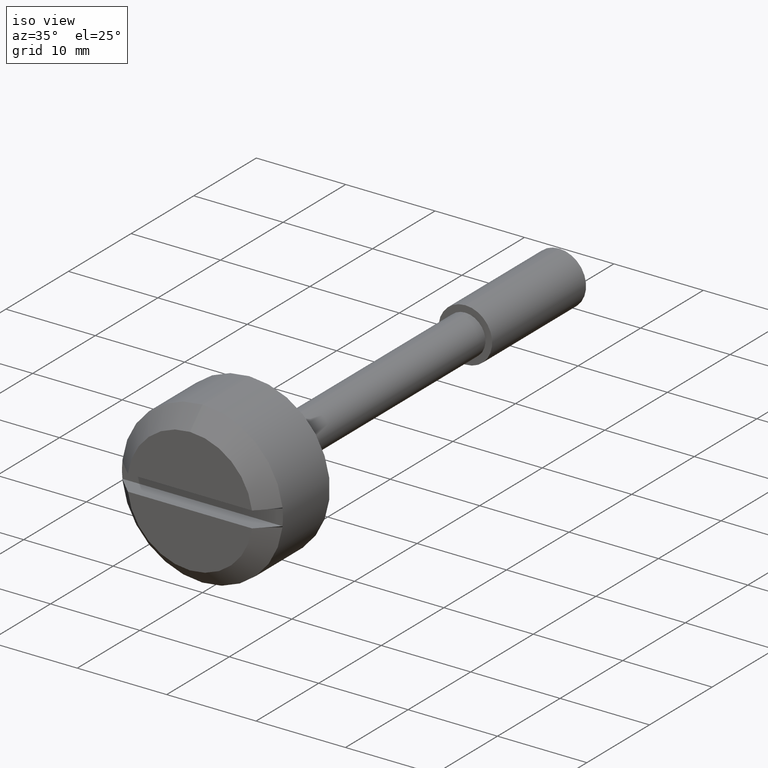
[diagram: clean part render]
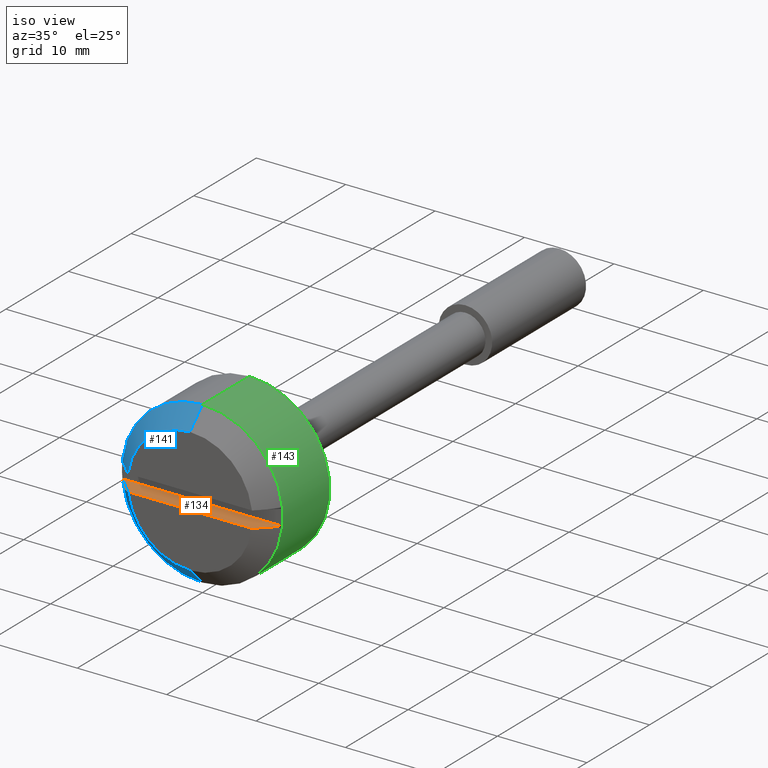
[diagram: same view with three faces highlighted in distinct colors, each labeled with its STEP entity id]
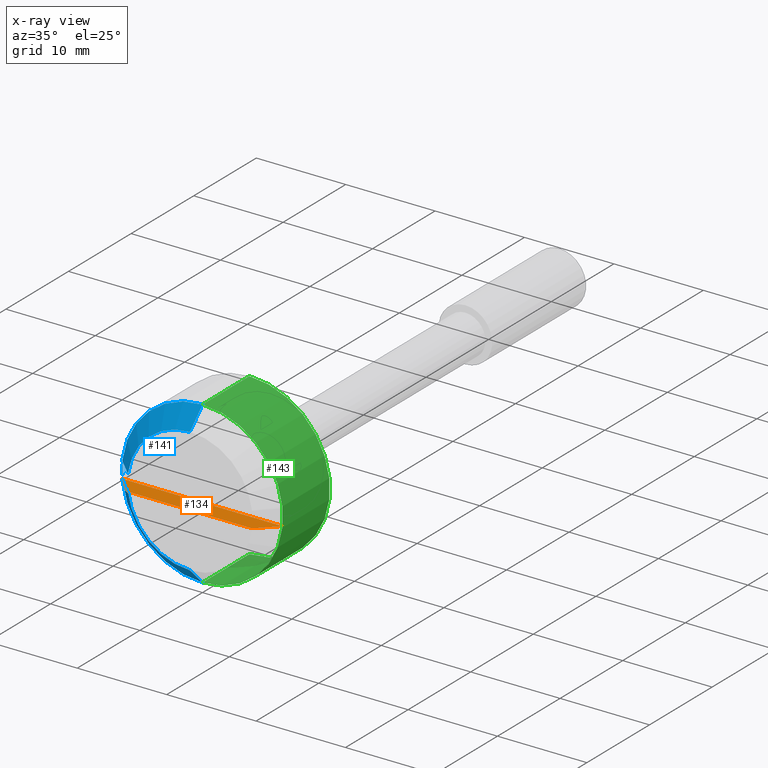
[diagram: x-ray of the same camera — body ghosted, the three highlighted faces saturated]
A machine part, iso view with three faces highlighted in distinct colors.
The next image is the same camera in x-ray (body ghosted, the three faces saturated) — at least one of them is partly hidden behind the body in this view.
Their STEP definitions:

[orange] entity #134 — the highlighted planar face has unit normal (0, 0, 1).
#134=ADVANCED_FACE('',(#377),#376,.T.);
#376=PLANE('',#694);
#377=FACE_OUTER_BOUND('',#695,.T.);
#691=CARTESIAN_POINT('',(-1.21998900000E+01,-1.07457437162E+01,-9.00000000000E-01));
#692=DIRECTION('',(0.00000000000E+00,0.00000000000E+00,1.00000000000E+00));
#693=DIRECTION('',(1.00000000000E+00,0.00000000000E+00,0.00000000000E+00));
#694=AXIS2_PLACEMENT_3D('',#691,#692,#693);
#695=EDGE_LOOP('',(#946,#947,#948,#949));
#946=ORIENTED_EDGE('',*,*,#1091,.F.);
#947=ORIENTED_EDGE('',*,*,#1090,.F.);
#948=ORIENTED_EDGE('',*,*,#1092,.F.);
#949=ORIENTED_EDGE('',*,*,#1093,.T.);
#1090=EDGE_CURVE('',#1525,#1518,#1532,.T.);
#1091=EDGE_CURVE('',#1518,#1538,#1539,.T.);
#1092=EDGE_CURVE('',#1545,#1525,#1546,.T.);
#1093=EDGE_CURVE('',#1545,#1538,#1552,.T.);
#1518=VERTEX_POINT('',#2029);
#1525=VERTEX_POINT('',#2034);
#1532=LINE('',#2039,#2040);
#1538=VERTEX_POINT('',#2042);
#1539=(BOUNDED_CURVE() B_SPLINE_CURVE(3,(#2043,#2044,#2045,#2046),.UNSPECIFIED.,.F.,.F.) B_SPLINE_CURVE_WITH_KNOTS((4,4),(1.52743872715E-02,1.81118693173E-02),.UNSPECIFIED.) CURVE() GEOMETRIC_REPRESENTATION_ITEM() RATIONAL_B_SPLINE_CURVE((1.00000000000E+00,1.00000000000E+00,1.00000000000E+00,1.00000000000E+00)) REPRESENTATION_ITEM('') );
#1545=VERTEX_POINT('',#2047);
#1546=(BOUNDED_CURVE() B_SPLINE_CURVE(3,(#2048,#2049,#2050,#2051),.UNSPECIFIED.,.F.,.F.) B_SPLINE_CURVE_WITH_KNOTS((4,4),(3.68298790014E-02,3.96928572527E-02),.UNSPECIFIED.) CURVE() GEOMETRIC_REPRESENTATION_ITEM() RATIONAL_B_SPLINE_CURVE((1.00000000000E+00,1.00000000000E+00,1.00000000000E+00,1.00000000000E+00)) REPRESENTATION_ITEM('') );
#1552=LINE('',#2052,#2053);
#2029=CARTESIAN_POINT('',(-1.00000000000E+01,-8.95478643017E+00,-9.00000000000E-01));
#2034=CARTESIAN_POINT('',(-1.00000000000E+01,8.95478643017E+00,-9.00000000000E-01));
#2039=CARTESIAN_POINT('',(-1.00000000000E+01,8.95478643017E+00,-9.00000000000E-01));
#2040=VECTOR('',#2041,1.79095728603E+01);
#2041=DIRECTION('',(0.00000000000E+00,-1.00000000000E+00,0.00000000000E+00));
#2042=CARTESIAN_POINT('',(-1.19999000000E+01,-6.94190175672E+00,-9.00000000000E-01));
#2043=CARTESIAN_POINT('',(-1.00000000000E+01,-8.95478643017E+00,-9.00000000000E-01));
#2044=CARTESIAN_POINT('',(-1.06671184612E+01,-8.28430707420E+00,-9.00000000000E-01));
#2045=CARTESIAN_POINT('',(-1.13338914218E+01,-7.61348430153E+00,-9.00000000000E-01));
#2046=CARTESIAN_POINT('',(-1.19999000000E+01,-6.94190175672E+00,-9.00000000000E-01));
#2047=CARTESIAN_POINT('',(-1.19999000000E+01,6.94190175672E+00,-9.00000000000E-01));
#2048=CARTESIAN_POINT('',(-1.19999000000E+01,6.94190175672E+00,-9.00000000000E-01));
#2049=CARTESIAN_POINT('',(-1.13338924097E+01,7.61348330534E+00,-9.00000000000E-01));
#2050=CARTESIAN_POINT('',(-1.06671192296E+01,8.28430630192E+00,-9.00000000000E-01));
#2051=CARTESIAN_POINT('',(-1.00000000000E+01,8.95478643017E+00,-9.00000000000E-01));
#2052=CARTESIAN_POINT('',(-1.19999000000E+01,6.94190175672E+00,-9.00000000000E-01));
#2053=VECTOR('',#2054,1.38838035134E+01);
#2054=DIRECTION('',(0.00000000000E+00,-1.00000000000E+00,0.00000000000E+00));

[blue] entity #141 — the highlighted face is a freeform B-spline surface patch.
#141=ADVANCED_FACE('',(#450),#449,.T.);
#449=( BOUNDED_SURFACE() B_SPLINE_SURFACE( 2,1,((#735,#736),(#737,#738),(#739,#740),(#741,#742),(#743,#744)), .UNSPECIFIED.,.F.,.F.,.F.) B_SPLINE_SURFACE_WITH_KNOTS((3,2,3),(2,2),(0.00000000000E+00,5.00000000000E-01,1.00000000000E+00),(0.00000000000E+00,1.00000000000E+00), .UNSPECIFIED. ) GEOMETRIC_REPRESENTATION_ITEM() RATIONAL_B_SPLINE_SURFACE(((1.00000000000E+00,1.00000000000E+00),(7.07106781187E-01,7.07106781187E-01),(1.00000000000E+00,1.00000000000E+00),(7.07106781187E-01,7.07106781187E-01),(1.00000000000E+00,1.00000000000E+00))) REPRESENTATION_ITEM('') SURFACE() );
#450=FACE_OUTER_BOUND('',#745,.T.);
#735=CARTESIAN_POINT('',(-1.89999000000E+01,0.00000000000E+00,0.00000000000E+00));
#736=CARTESIAN_POINT('',(-6.27197793865E+00,1.55872090122E-15,-1.27279220614E+01));
#737=CARTESIAN_POINT('',(-1.89999000000E+01,0.00000000000E+00,0.00000000000E+00));
#738=CARTESIAN_POINT('',(-6.27197793865E+00,1.27279220614E+01,-1.27279220614E+01));
#739=CARTESIAN_POINT('',(-1.89999000000E+01,0.00000000000E+00,0.00000000000E+00));
#740=CARTESIAN_POINT('',(-6.27197793865E+00,1.27279220614E+01,7.79360450612E-16));
#741=CARTESIAN_POINT('',(-1.89999000000E+01,0.00000000000E+00,0.00000000000E+00));
#742=CARTESIAN_POINT('',(-6.27197793865E+00,1.27279220614E+01,1.27279220614E+01));
#743=CARTESIAN_POINT('',(-1.89999000000E+01,0.00000000000E+00,0.00000000000E+00));
#744=CARTESIAN_POINT('',(-6.27197793865E+00,0.00000000000E+00,1.27279220614E+01));
#745=EDGE_LOOP('',(#976,#977,#978,#979,#980,#981,#982,#983));
#976=ORIENTED_EDGE('',*,*,#1102,.F.);
#977=ORIENTED_EDGE('',*,*,#1092,.T.);
#978=ORIENTED_EDGE('',*,*,#1089,.T.);
#979=ORIENTED_EDGE('',*,*,#1084,.T.);
#980=ORIENTED_EDGE('',*,*,#1109,.F.);
#981=ORIENTED_EDGE('',*,*,#1111,.T.);
#982=ORIENTED_EDGE('',*,*,#1113,.T.);
#983=ORIENTED_EDGE('',*,*,#1112,.F.);
#1084=EDGE_CURVE('',#1490,#1491,#1492,.T.);
#1089=EDGE_CURVE('',#1525,#1490,#1526,.T.);
#1092=EDGE_CURVE('',#1545,#1525,#1546,.T.);
#1102=EDGE_CURVE('',#1545,#1614,#1615,.T.);
#1109=EDGE_CURVE('',#1655,#1491,#1662,.T.);
#1111=EDGE_CURVE('',#1655,#1669,#1676,.T.);
#1112=EDGE_CURVE('',#1614,#1668,#1682,.T.);
#1113=EDGE_CURVE('',#1669,#1668,#1688,.T.);
#1490=VERTEX_POINT('',#2011);
#1491=VERTEX_POINT('',#2012);
#1492=(BOUNDED_CURVE() B_SPLINE_CURVE(3,(#2013,#2014,#2015,#2016),.UNSPECIFIED.,.F.,.F.) B_SPLINE_CURVE_WITH_KNOTS((4,4),(1.52743872715E-02,1.81118693173E-02),.UNSPECIFIED.) CURVE() GEOMETRIC_REPRESENTATION_ITEM() RATIONAL_B_SPLINE_CURVE((1.00000000000E+00,1.00000000000E+00,1.00000000000E+00,1.00000000000E+00)) REPRESENTATION_ITEM('') );
#1525=VERTEX_POINT('',#2034);
#1526=CIRCLE('',#2038,8.99990000000E+00);
#1545=VERTEX_POINT('',#2047);
#1546=(BOUNDED_CURVE() B_SPLINE_CURVE(3,(#2048,#2049,#2050,#2051),.UNSPECIFIED.,.F.,.F.) B_SPLINE_CURVE_WITH_KNOTS((4,4),(3.68298790014E-02,3.96928572527E-02),.UNSPECIFIED.) CURVE() GEOMETRIC_REPRESENTATION_ITEM() RATIONAL_B_SPLINE_CURVE((1.00000000000E+00,1.00000000000E+00,1.00000000000E+00,1.00000000000E+00)) REPRESENTATION_ITEM('') );
#1614=VERTEX_POINT('',#2095);
#1615=CIRCLE('',#2099,7.00000000000E+00);
#1655=VERTEX_POINT('',#2124);
#1662=CIRCLE('',#2132,7.00000000000E+00);
#1668=VERTEX_POINT('',#2133);
#1669=VERTEX_POINT('',#2134);
#1676=(BOUNDED_CURVE() B_SPLINE_CURVE(1,(#2139,#2140),.UNSPECIFIED.,.F.,.F.) B_SPLINE_CURVE_WITH_KNOTS((2,2),(5.49971939623E-01,7.07106780311E-01),.UNSPECIFIED.) CURVE() GEOMETRIC_REPRESENTATION_ITEM() RATIONAL_B_SPLINE_CURVE((1.00000000000E+00,1.00000000000E+00)) REPRESENTATION_ITEM('') );
#1682=(BOUNDED_CURVE() B_SPLINE_CURVE(1,(#2141,#2142),.UNSPECIFIED.,.F.,.F.) B_SPLINE_CURVE_WITH_KNOTS((2,2),(5.49971940812E-01,7.07106781187E-01),.UNSPECIFIED.) CURVE() GEOMETRIC_REPRESENTATION_ITEM() RATIONAL_B_SPLINE_CURVE((7.50000000000E-01,7.50000000000E-01)) REPRESENTATION_ITEM('') );
#1688=CIRCLE('',#2146,9.00000000000E+00);
#2011=CARTESIAN_POINT('',(-1.00000000000E+01,8.95478643017E+00,9.00000000000E-01));
#2012=CARTESIAN_POINT('',(-1.19999000000E+01,6.94190175672E+00,9.00000000000E-01));
#2013=CARTESIAN_POINT('',(-1.00000000000E+01,8.95478643017E+00,9.00000000000E-01));
#2014=CARTESIAN_POINT('',(-1.06671184612E+01,8.28430707420E+00,9.00000000000E-01));
#2015=CARTESIAN_POINT('',(-1.13338914218E+01,7.61348430153E+00,9.00000000000E-01));
#2016=CARTESIAN_POINT('',(-1.19999000000E+01,6.94190175672E+00,9.00000000000E-01));
#2034=CARTESIAN_POINT('',(-1.00000000000E+01,8.95478643017E+00,-9.00000000000E-01));
#2035=CARTESIAN_POINT('',(-1.00000000000E+01,0.00000000000E+00,0.00000000000E+00));
#2036=DIRECTION('',(1.00000000000E+00,0.00000000000E+00,-0.00000000000E+00));
#2037=DIRECTION('',(-0.00000000000E+00,-0.00000000000E+00,-1.00000000000E+00));
#2038=AXIS2_PLACEMENT_3D('',#2035,#2036,#2037);
#2047=CARTESIAN_POINT('',(-1.19999000000E+01,6.94190175672E+00,-9.00000000000E-01));
#2048=CARTESIAN_POINT('',(-1.19999000000E+01,6.94190175672E+00,-9.00000000000E-01));
#2049=CARTESIAN_POINT('',(-1.13338924097E+01,7.61348330534E+00,-9.00000000000E-01));
#2050=CARTESIAN_POINT('',(-1.06671192296E+01,8.28430630192E+00,-9.00000000000E-01));
#2051=CARTESIAN_POINT('',(-1.00000000000E+01,8.95478643017E+00,-9.00000000000E-01));
#2095=CARTESIAN_POINT('',(-1.19999000000E+01,4.46131334097E-11,-7.00000000000E+00));
#2096=CARTESIAN_POINT('',(-1.19999000000E+01,0.00000000000E+00,0.00000000000E+00));
#2097=DIRECTION('',(-1.00000000000E+00,0.00000000000E+00,0.00000000000E+00));
#2098=DIRECTION('',(-0.00000000000E+00,9.91700250960E-01,-1.28571428572E-01));
#2099=AXIS2_PLACEMENT_3D('',#2096,#2097,#2098);
#2124=CARTESIAN_POINT('',(-1.19999000000E+01,-7.64783999247E-11,7.00000000000E+00));
#2129=CARTESIAN_POINT('',(-1.19999000000E+01,0.00000000000E+00,0.00000000000E+00));
#2130=DIRECTION('',(-1.00000000000E+00,0.00000000000E+00,0.00000000000E+00));
#2131=DIRECTION('',(-0.00000000000E+00,-0.00000000000E+00,-1.00000000000E+00));
#2132=AXIS2_PLACEMENT_3D('',#2129,#2130,#2131);
#2133=CARTESIAN_POINT('',(-9.99990000000E+00,5.92118946467E-16,-9.00000000000E+00));
#2134=CARTESIAN_POINT('',(-9.99990000000E+00,0.00000000000E+00,9.00000000000E+00));
#2139=CARTESIAN_POINT('',(-1.19999000165E+01,-1.71444889130E-15,6.99999998346E+00));
#2140=CARTESIAN_POINT('',(-9.99990001114E+00,-2.20429143415E-15,8.99999998886E+00));
#2141=CARTESIAN_POINT('',(-1.19999000014E+01,1.95389283708E-15,-6.99999999858E+00));
#2142=CARTESIAN_POINT('',(-9.99990000000E+00,2.51214793389E-15,-9.00000000000E+00));
#2143=CARTESIAN_POINT('',(-9.99990000000E+00,0.00000000000E+00,0.00000000000E+00));
#2144=DIRECTION('',(-1.00000000000E+00,0.00000000000E+00,0.00000000000E+00));
#2145=DIRECTION('',(0.00000000000E+00,-1.22460635382E-16,1.00000000000E+00));
#2146=AXIS2_PLACEMENT_3D('',#2143,#2144,#2145);

[green] entity #143 — the highlighted cylindrical surface (partial cylindrical patch) has radius 9 mm, axis along (0, -1, -0).
#143=ADVANCED_FACE('',(#470),#469,.T.);
#469=CYLINDRICAL_SURFACE('',#754,9.00000000000E+00);
#470=FACE_OUTER_BOUND('',#755,.T.);
#751=CARTESIAN_POINT('',(-1.00200000000E+03,0.00000000000E+00,0.00000000000E+00));
#752=DIRECTION('',(-1.00000000000E+00,-0.00000000000E+00,-0.00000000000E+00));
#753=DIRECTION('',(-0.00000000000E+00,-0.00000000000E+00,1.00000000000E+00));
#754=AXIS2_PLACEMENT_3D('',#751,#752,#753);
#755=EDGE_LOOP('',(#988,#989,#990,#991));
#988=ORIENTED_EDGE('',*,*,#1117,.T.);
#989=ORIENTED_EDGE('',*,*,#1114,.T.);
#990=ORIENTED_EDGE('',*,*,#1110,.F.);
#991=ORIENTED_EDGE('',*,*,#1116,.F.);
#1110=EDGE_CURVE('',#1668,#1669,#1670,.T.);
#1114=EDGE_CURVE('',#1694,#1669,#1695,.T.);
#1116=EDGE_CURVE('',#1701,#1668,#1708,.T.);
#1117=EDGE_CURVE('',#1701,#1694,#1714,.T.);
#1668=VERTEX_POINT('',#2133);
#1669=VERTEX_POINT('',#2134);
#1670=CIRCLE('',#2138,9.00000000000E+00);
#1694=VERTEX_POINT('',#2147);
#1695=(BOUNDED_CURVE() B_SPLINE_CURVE(1,(#2148,#2149),.UNSPECIFIED.,.F.,.F.) B_SPLINE_CURVE_WITH_KNOTS((2,2),(8.33333320912E-02,9.16666667486E-01),.UNSPECIFIED.) CURVE() GEOMETRIC_REPRESENTATION_ITEM() RATIONAL_B_SPLINE_CURVE((1.00000000000E+00,1.00000000000E+00)) REPRESENTATION_ITEM('') );
#1701=VERTEX_POINT('',#2150);
#1708=(BOUNDED_CURVE() B_SPLINE_CURVE(1,(#2155,#2156),.UNSPECIFIED.,.F.,.F.) B_SPLINE_CURVE_WITH_KNOTS((2,2),(8.33333333333E-02,9.16666666667E-01),.UNSPECIFIED.) CURVE() GEOMETRIC_REPRESENTATION_ITEM() RATIONAL_B_SPLINE_CURVE((7.50000000000E-01,7.50000000000E-01)) REPRESENTATION_ITEM('') );
#1714=CIRCLE('',#2160,9.00000000000E+00);
#2133=CARTESIAN_POINT('',(-9.99990000000E+00,5.92118946467E-16,-9.00000000000E+00));
#2134=CARTESIAN_POINT('',(-9.99990000000E+00,0.00000000000E+00,9.00000000000E+00));
#2135=CARTESIAN_POINT('',(-9.99990000000E+00,0.00000000000E+00,0.00000000000E+00));
#2136=DIRECTION('',(-1.00000000000E+00,0.00000000000E+00,0.00000000000E+00));
#2137=DIRECTION('',(0.00000000000E+00,-1.22460635382E-16,1.00000000000E+00));
#2138=AXIS2_PLACEMENT_3D('',#2135,#2136,#2137);
#2147=CARTESIAN_POINT('',(-2.50000000000E+00,-2.66453525910E-15,9.00000000000E+00));
#2148=CARTESIAN_POINT('',(-2.49999998882E+00,0.00000000000E+00,9.00000000000E+00));
#2149=CARTESIAN_POINT('',(-9.99990000737E+00,0.00000000000E+00,9.00000000000E+00));
#2150=CARTESIAN_POINT('',(-2.50000000000E+00,0.00000000000E+00,-9.00000000000E+00));
#2155=CARTESIAN_POINT('',(-2.50000000000E+00,-5.92118946467E-16,-9.00000000000E+00));
#2156=CARTESIAN_POINT('',(-9.99990000000E+00,-5.92118946467E-16,-9.00000000000E+00));
#2157=CARTESIAN_POINT('',(-2.50000000000E+00,0.00000000000E+00,0.00000000000E+00));
#2158=DIRECTION('',(-1.00000000000E+00,0.00000000000E+00,-0.00000000000E+00));
#2159=DIRECTION('',(0.00000000000E+00,-1.22460635382E-16,-1.00000000000E+00));
#2160=AXIS2_PLACEMENT_3D('',#2157,#2158,#2159);